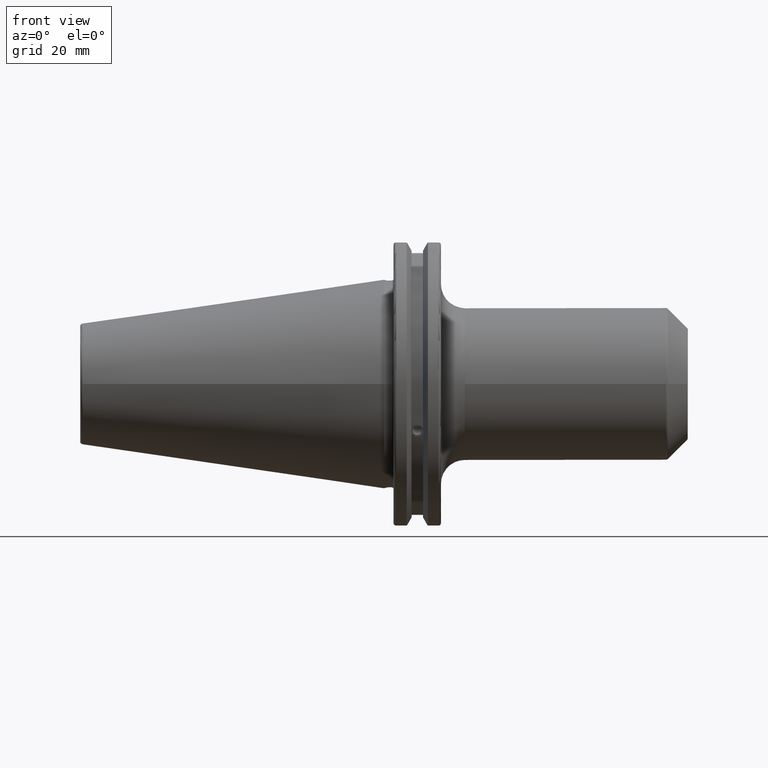
[diagram: clean part render]
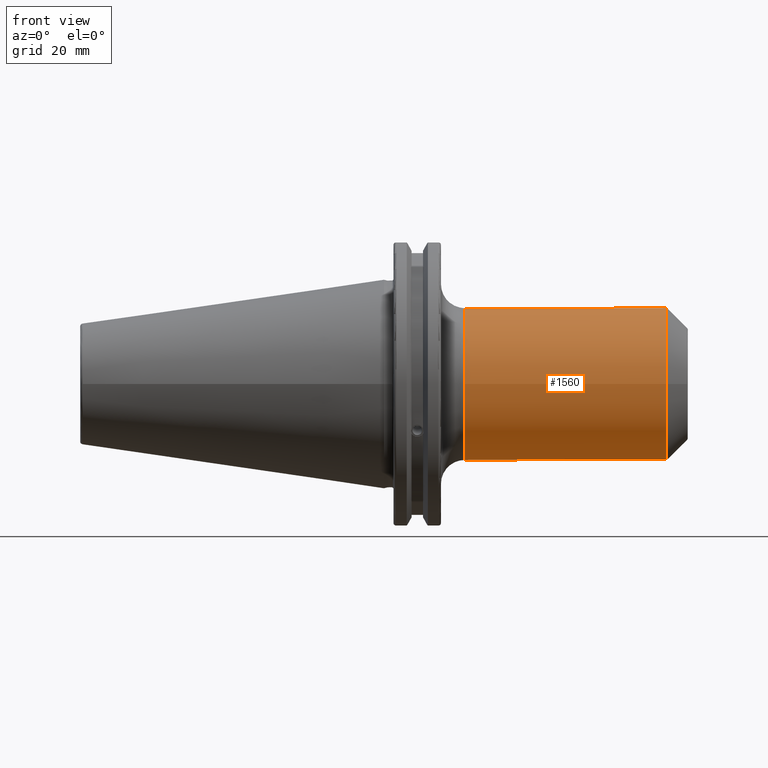
[diagram: same view with one face highlighted and labeled with its STEP entity id]
A machine part, front view. The second image highlights one B-rep face of the part: STEP entity #1560.
In plain terms, the highlighted cylindrical surface (bore or boss wall) has radius 25.4 mm, axis along (1, 0, 0).
Its self-contained STEP definition (entity closure, byte-faithful):
#59=FACE_BOUND('',#224,.T.);
#60=FACE_BOUND('',#225,.T.);
#130=FACE_OUTER_BOUND('',#223,.T.);
#223=EDGE_LOOP('',(#1082,#1083,#1084,#1085,#1086,#1087));
#224=EDGE_LOOP('',(#1088,#1089));
#225=EDGE_LOOP('',(#1090,#1091));
#332=B_SPLINE_CURVE_WITH_KNOTS('',3,(#2334,#2335,#2336,#2337,#2338,#2339,
#2340,#2341,#2342,#2343),.UNSPECIFIED.,.F.,.F.,(4,2,2,2,4),(0.,0.369017369968606,
0.738034739937213,1.1234251653926,1.508815590848),.UNSPECIFIED.);
#333=B_SPLINE_CURVE_WITH_KNOTS('',3,(#2344,#2345,#2346,#2347,#2348,#2349,
#2350,#2351,#2352,#2353,#2354,#2355,#2356,#2357,#2358,#2359,#2360,#2361,
#2362,#2363,#2364,#2365,#2366,#2367,#2368,#2369),.UNSPECIFIED.,.F.,.F.,
(4,2,2,2,2,2,2,2,2,2,2,2,4),(1.508815590848,1.89420601630339,2.27959644175878,
2.64861381172739,3.01763118169599,3.3866485516646,3.75566592163321,4.1410563470886,
4.52644677254399,4.91183719799938,5.29722762345477,5.66624499342338,6.03526236339199),
 .UNSPECIFIED.);
#336=B_SPLINE_CURVE_WITH_KNOTS('',3,(#2419,#2420,#2421,#2422,#2423,#2424,
#2425,#2426,#2427,#2428),.UNSPECIFIED.,.F.,.F.,(4,2,2,2,4),(0.,0.369017369968607,
0.738034739937215,1.12342516539261,1.508815590848),.UNSPECIFIED.);
#337=B_SPLINE_CURVE_WITH_KNOTS('',3,(#2429,#2430,#2431,#2432,#2433,#2434,
#2435,#2436,#2437,#2438,#2439,#2440,#2441,#2442,#2443,#2444,#2445,#2446,
#2447,#2448,#2449,#2450,#2451,#2452,#2453,#2454),.UNSPECIFIED.,.F.,.F.,
(4,2,2,2,2,2,2,2,2,2,2,2,4),(1.508815590848,1.89420601630339,2.27959644175878,
2.64861381172739,3.01763118169599,3.3866485516646,3.75566592163321,4.1410563470886,
4.52644677254399,4.91183719799938,5.29722762345477,5.66624499342338,6.03526236339199),
 .UNSPECIFIED.);
#381=LINE('',#2473,#475);
#475=VECTOR('',#1887,25.4);
#571=CIRCLE('',#1680,25.4);
#572=CIRCLE('',#1681,25.4);
#575=CIRCLE('',#1686,25.4);
#576=CIRCLE('',#1687,25.4);
#649=VERTEX_POINT('',#2331);
#650=VERTEX_POINT('',#2333);
#655=VERTEX_POINT('',#2416);
#656=VERTEX_POINT('',#2418);
#659=VERTEX_POINT('',#2460);
#660=VERTEX_POINT('',#2462);
#663=VERTEX_POINT('',#2472);
#664=VERTEX_POINT('',#2474);
#813=EDGE_CURVE('',#650,#649,#332,.T.);
#814=EDGE_CURVE('',#649,#650,#333,.T.);
#821=EDGE_CURVE('',#656,#655,#336,.T.);
#822=EDGE_CURVE('',#655,#656,#337,.T.);
#826=EDGE_CURVE('',#659,#660,#571,.T.);
#827=EDGE_CURVE('',#660,#659,#572,.T.);
#831=EDGE_CURVE('',#660,#663,#381,.T.);
#832=EDGE_CURVE('',#664,#663,#575,.T.);
#833=EDGE_CURVE('',#663,#664,#576,.T.);
#1082=ORIENTED_EDGE('',*,*,#827,.F.);
#1083=ORIENTED_EDGE('',*,*,#831,.T.);
#1084=ORIENTED_EDGE('',*,*,#832,.F.);
#1085=ORIENTED_EDGE('',*,*,#833,.F.);
#1086=ORIENTED_EDGE('',*,*,#831,.F.);
#1087=ORIENTED_EDGE('',*,*,#826,.F.);
#1088=ORIENTED_EDGE('',*,*,#813,.T.);
#1089=ORIENTED_EDGE('',*,*,#814,.T.);
#1090=ORIENTED_EDGE('',*,*,#821,.T.);
#1091=ORIENTED_EDGE('',*,*,#822,.T.);
#1526=CYLINDRICAL_SURFACE('',#1685,25.4);
#1560=ADVANCED_FACE('',(#130,#59,#60),#1526,.T.);
#1680=AXIS2_PLACEMENT_3D('',#2463,#1874,#1875);
#1681=AXIS2_PLACEMENT_3D('',#2464,#1876,#1877);
#1685=AXIS2_PLACEMENT_3D('',#2471,#1885,#1886);
#1686=AXIS2_PLACEMENT_3D('',#2475,#1888,#1889);
#1687=AXIS2_PLACEMENT_3D('',#2476,#1890,#1891);
#1874=DIRECTION('center_axis',(1.,0.,0.));
#1875=DIRECTION('ref_axis',(0.,-1.,1.83697019872103E-16));
#1876=DIRECTION('center_axis',(1.,0.,0.));
#1877=DIRECTION('ref_axis',(0.,-1.,1.83697019872103E-16));
#1885=DIRECTION('center_axis',(1.,0.,0.));
#1886=DIRECTION('ref_axis',(0.,1.,0.));
#1887=DIRECTION('',(-1.,0.,0.));
#1888=DIRECTION('center_axis',(-1.,0.,0.));
#1889=DIRECTION('ref_axis',(0.,-1.,-1.22464679914735E-16));
#1890=DIRECTION('center_axis',(-1.,0.,0.));
#1891=DIRECTION('ref_axis',(0.,-1.,-1.22464679914735E-16));
#2331=CARTESIAN_POINT('',(68.35,25.4,-1.31649530908341E-15));
#2333=CARTESIAN_POINT('',(57.6,23.7239138359832,-9.07391383598316));
#2334=CARTESIAN_POINT('Ctrl Pts',(57.6,23.7239138359832,-9.07391383598316));
#2335=CARTESIAN_POINT('Ctrl Pts',(58.8300578998954,23.7239138359832,-9.07391383598316));
#2336=CARTESIAN_POINT('Ctrl Pts',(60.1545598093625,23.8001174065229,-8.88240676509612));
#2337=CARTESIAN_POINT('Ctrl Pts',(62.6495726973433,24.0855398848548,-8.07647957136603));
#2338=CARTESIAN_POINT('Ctrl Pts',(63.8205822692293,24.291062336986,-7.46229822654655));
#2339=CARTESIAN_POINT('Ctrl Pts',(65.7936244522259,24.7039713823109,-5.95887220725697));
#2340=CARTESIAN_POINT('Ctrl Pts',(66.723980194765,24.9424362858309,-4.9426569222739));
#2341=CARTESIAN_POINT('Ctrl Pts',(68.0034378699729,25.2934812678526,-2.60668659485486));
#2342=CARTESIAN_POINT('Ctrl Pts',(68.35,25.4,-1.28463475151797));
#2343=CARTESIAN_POINT('Ctrl Pts',(68.35,25.4,-1.80411241501588E-15));
#2344=CARTESIAN_POINT('Ctrl Pts',(68.35,25.4,-2.08166817117217E-15));
#2345=CARTESIAN_POINT('Ctrl Pts',(68.35,25.4,1.28463475151797));
#2346=CARTESIAN_POINT('Ctrl Pts',(68.0034378699729,25.2934812678526,2.60668659485486));
#2347=CARTESIAN_POINT('Ctrl Pts',(66.723980194765,24.9424362858309,4.94265692227389));
#2348=CARTESIAN_POINT('Ctrl Pts',(65.7936244522259,24.7039713823109,5.95887220725696));
#2349=CARTESIAN_POINT('Ctrl Pts',(63.8205822692293,24.291062336986,7.46229822654654));
#2350=CARTESIAN_POINT('Ctrl Pts',(62.6495726973433,24.0855398848548,8.07647957136604));
#2351=CARTESIAN_POINT('Ctrl Pts',(60.1545598093625,23.8001174065229,8.88240676509613));
#2352=CARTESIAN_POINT('Ctrl Pts',(58.8300578998954,23.7239138359832,9.07391383598316));
#2353=CARTESIAN_POINT('Ctrl Pts',(56.3699421001047,23.7239138359832,9.07391383598316));
#2354=CARTESIAN_POINT('Ctrl Pts',(55.0454401906375,23.8001174065229,8.88240676509612));
#2355=CARTESIAN_POINT('Ctrl Pts',(52.5504273026567,24.0855398848548,8.07647957136603));
#2356=CARTESIAN_POINT('Ctrl Pts',(51.3794177307708,24.291062336986,7.46229822654655));
#2357=CARTESIAN_POINT('Ctrl Pts',(49.4063755477741,24.7039713823109,5.95887220725697));
#2358=CARTESIAN_POINT('Ctrl Pts',(48.476019805235,24.9424362858309,4.94265692227389));
#2359=CARTESIAN_POINT('Ctrl Pts',(47.1965621300272,25.2934812678527,2.60668659485485));
#2360=CARTESIAN_POINT('Ctrl Pts',(46.85,25.4,1.28463475151797));
#2361=CARTESIAN_POINT('Ctrl Pts',(46.85,25.4,-1.28463475151797));
#2362=CARTESIAN_POINT('Ctrl Pts',(47.1965621300271,25.2934812678527,-2.60668659485485));
#2363=CARTESIAN_POINT('Ctrl Pts',(48.476019805235,24.9424362858309,-4.94265692227389));
#2364=CARTESIAN_POINT('Ctrl Pts',(49.4063755477741,24.7039713823109,-5.95887220725696));
#2365=CARTESIAN_POINT('Ctrl Pts',(51.3794177307707,24.2910623369861,-7.46229822654654));
#2366=CARTESIAN_POINT('Ctrl Pts',(52.5504273026567,24.0855398848548,-8.07647957136603));
#2367=CARTESIAN_POINT('Ctrl Pts',(55.0454401906375,23.8001174065229,-8.88240676509613));
#2368=CARTESIAN_POINT('Ctrl Pts',(56.3699421001046,23.7239138359832,-9.07391383598316));
#2369=CARTESIAN_POINT('Ctrl Pts',(57.6,23.7239138359832,-9.07391383598316));
#2416=CARTESIAN_POINT('',(91.25,25.4,-1.31649530908341E-15));
#2418=CARTESIAN_POINT('',(80.5,23.7239138359832,-9.07391383598316));
#2419=CARTESIAN_POINT('Ctrl Pts',(80.5,23.7239138359832,-9.07391383598316));
#2420=CARTESIAN_POINT('Ctrl Pts',(81.7300578998954,23.7239138359832,-9.07391383598316));
#2421=CARTESIAN_POINT('Ctrl Pts',(83.0545598093625,23.8001174065229,-8.88240676509613));
#2422=CARTESIAN_POINT('Ctrl Pts',(85.5495726973433,24.0855398848548,-8.07647957136603));
#2423=CARTESIAN_POINT('Ctrl Pts',(86.7205822692293,24.291062336986,-7.46229822654655));
#2424=CARTESIAN_POINT('Ctrl Pts',(88.6936244522259,24.7039713823109,-5.95887220725697));
#2425=CARTESIAN_POINT('Ctrl Pts',(89.623980194765,24.9424362858309,-4.9426569222739));
#2426=CARTESIAN_POINT('Ctrl Pts',(90.9034378699729,25.2934812678526,-2.60668659485487));
#2427=CARTESIAN_POINT('Ctrl Pts',(91.25,25.4,-1.28463475151797));
#2428=CARTESIAN_POINT('Ctrl Pts',(91.25,25.4,-1.52655665885959E-15));
#2429=CARTESIAN_POINT('Ctrl Pts',(91.25,25.4,-2.08166817117217E-15));
#2430=CARTESIAN_POINT('Ctrl Pts',(91.25,25.4,1.28463475151797));
#2431=CARTESIAN_POINT('Ctrl Pts',(90.9034378699729,25.2934812678526,2.60668659485486));
#2432=CARTESIAN_POINT('Ctrl Pts',(89.623980194765,24.9424362858309,4.9426569222739));
#2433=CARTESIAN_POINT('Ctrl Pts',(88.6936244522259,24.7039713823109,5.95887220725696));
#2434=CARTESIAN_POINT('Ctrl Pts',(86.7205822692293,24.291062336986,7.46229822654655));
#2435=CARTESIAN_POINT('Ctrl Pts',(85.5495726973433,24.0855398848548,8.07647957136604));
#2436=CARTESIAN_POINT('Ctrl Pts',(83.0545598093624,23.8001174065229,8.88240676509613));
#2437=CARTESIAN_POINT('Ctrl Pts',(81.7300578998954,23.7239138359832,9.07391383598316));
#2438=CARTESIAN_POINT('Ctrl Pts',(79.2699421001046,23.7239138359832,9.07391383598316));
#2439=CARTESIAN_POINT('Ctrl Pts',(77.9454401906375,23.8001174065229,8.88240676509612));
#2440=CARTESIAN_POINT('Ctrl Pts',(75.4504273026567,24.0855398848548,8.07647957136603));
#2441=CARTESIAN_POINT('Ctrl Pts',(74.2794177307707,24.291062336986,7.46229822654655));
#2442=CARTESIAN_POINT('Ctrl Pts',(72.3063755477741,24.7039713823109,5.95887220725697));
#2443=CARTESIAN_POINT('Ctrl Pts',(71.376019805235,24.9424362858309,4.9426569222739));
#2444=CARTESIAN_POINT('Ctrl Pts',(70.0965621300272,25.2934812678527,2.60668659485486));
#2445=CARTESIAN_POINT('Ctrl Pts',(69.75,25.4,1.28463475151797));
#2446=CARTESIAN_POINT('Ctrl Pts',(69.75,25.4,-1.28463475151797));
#2447=CARTESIAN_POINT('Ctrl Pts',(70.0965621300272,25.2934812678527,-2.60668659485485));
#2448=CARTESIAN_POINT('Ctrl Pts',(71.376019805235,24.9424362858309,-4.94265692227389));
#2449=CARTESIAN_POINT('Ctrl Pts',(72.3063755477741,24.7039713823109,-5.95887220725696));
#2450=CARTESIAN_POINT('Ctrl Pts',(74.2794177307707,24.2910623369861,-7.46229822654654));
#2451=CARTESIAN_POINT('Ctrl Pts',(75.4504273026567,24.0855398848548,-8.07647957136603));
#2452=CARTESIAN_POINT('Ctrl Pts',(77.9454401906375,23.8001174065229,-8.88240676509612));
#2453=CARTESIAN_POINT('Ctrl Pts',(79.2699421001046,23.7239138359832,-9.07391383598316));
#2454=CARTESIAN_POINT('Ctrl Pts',(80.5,23.7239138359832,-9.07391383598316));
#2460=CARTESIAN_POINT('',(94.2857864376269,-3.11060286983428E-15,25.4));
#2462=CARTESIAN_POINT('',(94.2857864376269,-25.4,-3.11060286983428E-15));
#2463=CARTESIAN_POINT('Origin',(94.2857864376269,0.,0.));
#2464=CARTESIAN_POINT('Origin',(94.2857864376269,0.,0.));
#2471=CARTESIAN_POINT('Origin',(56.875,0.,0.));
#2472=CARTESIAN_POINT('',(27.05,-25.4,-3.11060286983428E-15));
#2473=CARTESIAN_POINT('',(56.875,-25.4,-3.11060286983428E-15));
#2474=CARTESIAN_POINT('',(27.05,-3.11060286983428E-15,-25.4));
#2475=CARTESIAN_POINT('Origin',(27.05,0.,0.));
#2476=CARTESIAN_POINT('Origin',(27.05,0.,0.));